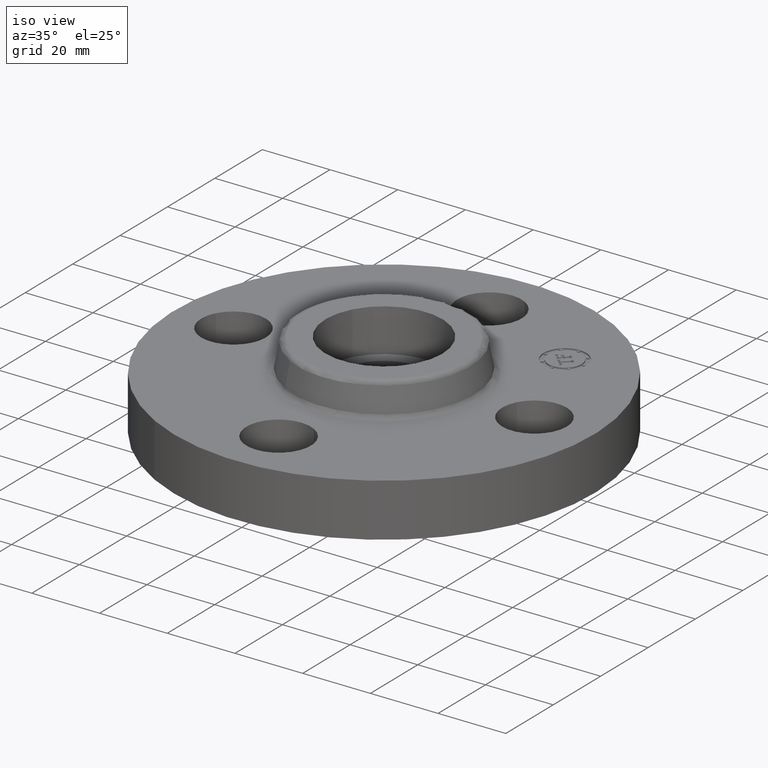
[diagram: clean part render]
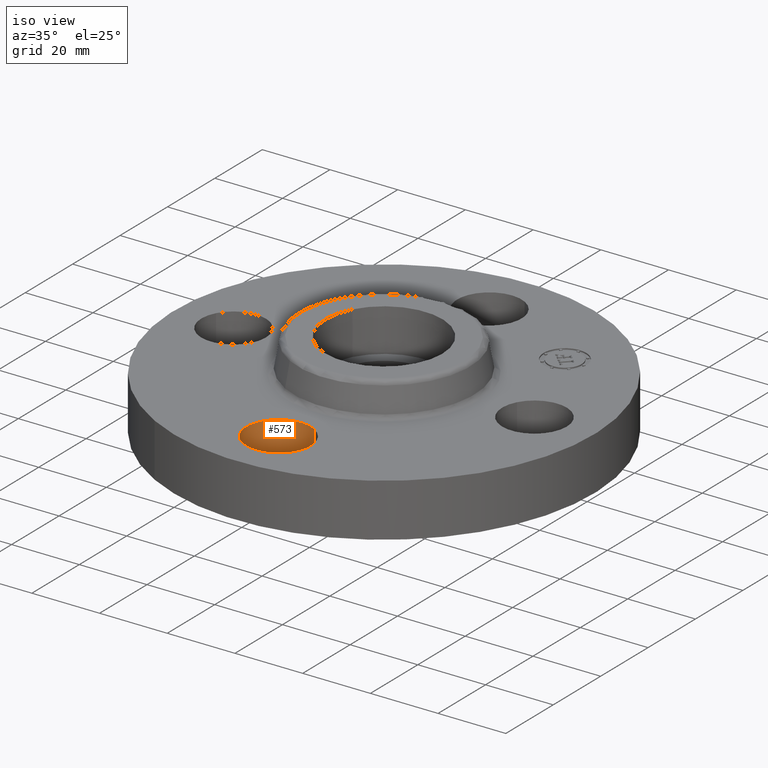
[diagram: same view with one face highlighted and labeled with its STEP entity id]
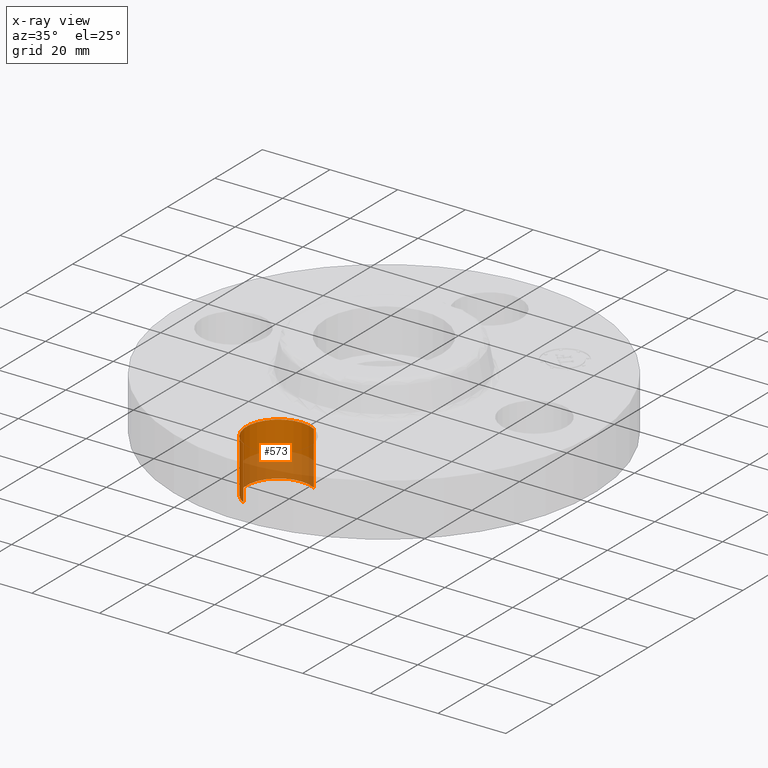
[diagram: x-ray of the same camera — body ghosted, the highlighted face saturated]
A machine part, iso view. The second image highlights one B-rep face of the part: STEP entity #573.
The next image is the same camera in x-ray: the body ghosted, the highlighted face saturated — about 43% of this face is hidden behind the body in this view.
In plain terms, the highlighted cylindrical surface (partial cylindrical patch) has radius 9.525 mm, axis along (0, -0, -1).
Its self-contained STEP definition (entity closure, byte-faithful):
#199=AXIS2_PLACEMENT_3D('Circle Axis2P3D',#197,#198,$) ;
#546=AXIS2_PLACEMENT_3D('Cylinder Axis2P3D',#543,#544,#545) ;
#564=AXIS2_PLACEMENT_3D('Circle Axis2P3D',#562,#563,$) ;
#192=CARTESIAN_POINT('Vertex',(0.179784576977,-1.4209065393,0.)) ;
#194=CARTESIAN_POINT('Vertex',(-0.179784576977,-2.07909346072,0.)) ;
#197=CARTESIAN_POINT('Axis2P3D Location',(-2.44773580232E-016,-1.75000000001,0.)) ;
#543=CARTESIAN_POINT('Axis2P3D Location',(-1.72584639625E-016,-1.75000000001,0.616062992128)) ;
#548=CARTESIAN_POINT('Line Origine',(-0.179784576977,-2.07909346072,0.310000000001)) ;
#552=CARTESIAN_POINT('Vertex',(-0.179784576977,-2.07909346072,0.620000000002)) ;
#555=CARTESIAN_POINT('Line Origine',(0.179784576977,-1.4209065393,0.310000000001)) ;
#559=CARTESIAN_POINT('Vertex',(0.179784576977,-1.4209065393,0.620000000002)) ;
#562=CARTESIAN_POINT('Axis2P3D Location',(-1.72584639625E-016,-1.75000000001,0.620000000002)) ;
#198=DIRECTION('Axis2P3D Direction',(0.,0.,-0.0393700787402)) ;
#544=DIRECTION('Axis2P3D Direction',(0.,-0.,-0.0393700787402)) ;
#545=DIRECTION('Axis2P3D XDirection',(0.0188750212049,0.0345504945626,-0.)) ;
#549=DIRECTION('Vector Direction',(0.,0.,-0.0393700787402)) ;
#556=DIRECTION('Vector Direction',(0.,0.,-0.0393700787402)) ;
#563=DIRECTION('Axis2P3D Direction',(0.,-0.,-0.0393700787402)) ;
#550=VECTOR('Line Direction',#549,0.0393700787402) ;
#557=VECTOR('Line Direction',#556,0.0393700787402) ;
#568=ORIENTED_EDGE('',*,*,#554,.F.) ;
#569=ORIENTED_EDGE('',*,*,#201,.T.) ;
#570=ORIENTED_EDGE('',*,*,#561,.T.) ;
#571=ORIENTED_EDGE('',*,*,#566,.F.) ;
#573=ADVANCED_FACE('PartBody',(#572),#547,.F.) ;
#200=CIRCLE('generated circle',#199,0.375000000001) ;
#565=CIRCLE('generated circle',#564,0.375000000001) ;
#547=CYLINDRICAL_SURFACE('generated cylinder',#546,0.375000000001) ;
#201=EDGE_CURVE('',#195,#193,#200,.T.) ;
#554=EDGE_CURVE('',#195,#553,#551,.F.) ;
#561=EDGE_CURVE('',#193,#560,#558,.F.) ;
#566=EDGE_CURVE('',#553,#560,#565,.T.) ;
#567=EDGE_LOOP('',(#568,#569,#570,#571)) ;
#572=FACE_OUTER_BOUND('',#567,.T.) ;
#551=LINE('Line',#548,#550) ;
#558=LINE('Line',#555,#557) ;
#193=VERTEX_POINT('',#192) ;
#195=VERTEX_POINT('',#194) ;
#553=VERTEX_POINT('',#552) ;
#560=VERTEX_POINT('',#559) ;